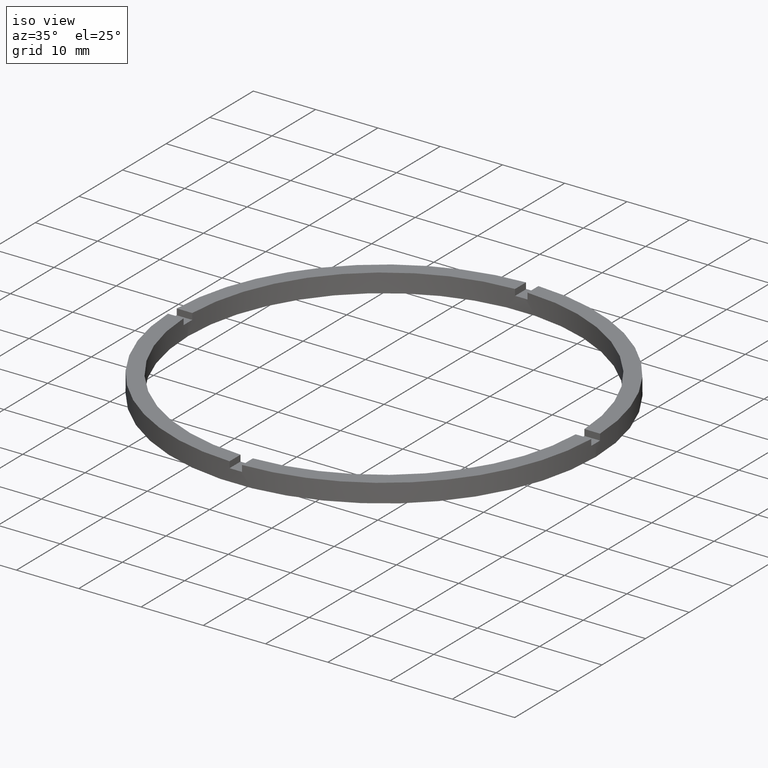
[diagram: clean part render]
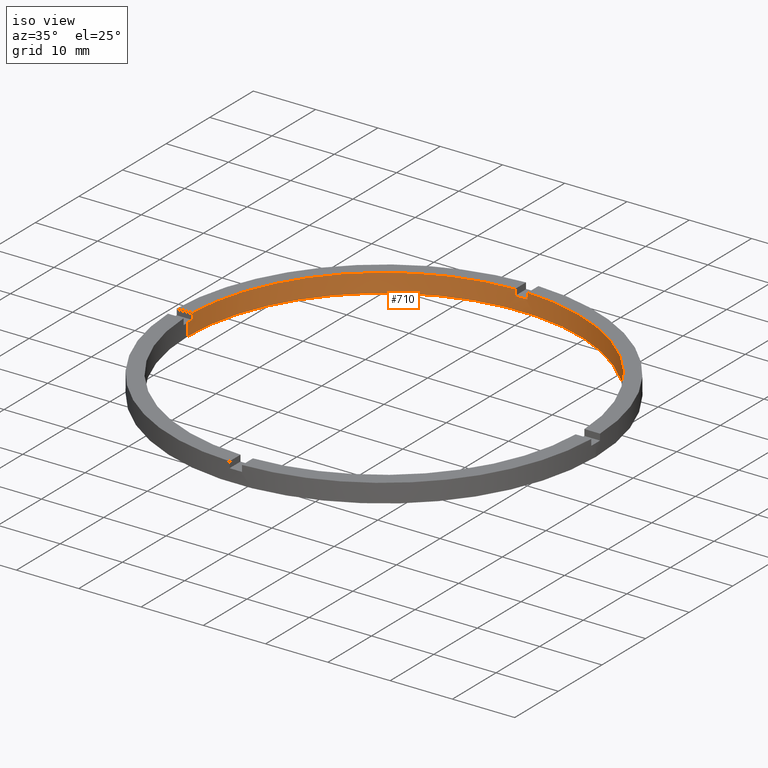
[diagram: same view with one face highlighted and labeled with its STEP entity id]
A machine part, iso view. The second image highlights one B-rep face of the part: STEP entity #710.
In plain terms, the highlighted cylindrical surface (partial cylindrical patch) has radius 31.5 mm, axis along (-0, -0, -1).
Its self-contained STEP definition (entity closure, byte-faithful):
#14 = ORIENTED_EDGE ( 'NONE', *, *, #447, .F. ) ;
#19 = CARTESIAN_POINT ( 'NONE',  ( -31.50000000000000000, 0.000000000000000000, 0.000000000000000000 ) ) ;
#20 = VERTEX_POINT ( 'NONE', #313 ) ;
#21 = DIRECTION ( 'NONE',  ( -0.000000000000000000, -0.000000000000000000, -1.000000000000000000 ) ) ;
#24 = AXIS2_PLACEMENT_3D ( 'NONE', #300, #392, #235 ) ;
#35 = ORIENTED_EDGE ( 'NONE', *, *, #758, .F. ) ;
#58 = VERTEX_POINT ( 'NONE', #655 ) ;
#61 = ORIENTED_EDGE ( 'NONE', *, *, #232, .F. ) ;
#73 = VERTEX_POINT ( 'NONE', #255 ) ;
#77 = ORIENTED_EDGE ( 'NONE', *, *, #582, .T. ) ;
#91 = LINE ( 'NONE', #525, #621 ) ;
#108 = CIRCLE ( 'NONE', #458, 31.50000000000000000 ) ;
#110 = VERTEX_POINT ( 'NONE', #19 ) ;
#115 = CIRCLE ( 'NONE', #722, 31.50000000000000000 ) ;
#131 = ORIENTED_EDGE ( 'NONE', *, *, #705, .T. ) ;
#136 = CARTESIAN_POINT ( 'NONE',  ( -1.000000000000024869, 31.48412298286233124, 3.000000000000000000 ) ) ;
#169 = CARTESIAN_POINT ( 'NONE',  ( 0.000000000000000000, 0.000000000000000000, 2.000000000000000000 ) ) ;
#174 = VERTEX_POINT ( 'NONE', #307 ) ;
#182 = CARTESIAN_POINT ( 'NONE',  ( 0.9999999999999751310, 31.48412298286233124, 3.000000000000000000 ) ) ;
#191 = DIRECTION ( 'NONE',  ( -0.000000000000000000, -0.000000000000000000, -1.000000000000000000 ) ) ;
#201 = EDGE_CURVE ( 'NONE', #598, #513, #772, .T. ) ;
#206 = AXIS2_PLACEMENT_3D ( 'NONE', #320, #414, #468 ) ;
#219 = DIRECTION ( 'NONE',  ( 0.000000000000000000, 0.000000000000000000, 1.000000000000000000 ) ) ;
#232 = EDGE_CURVE ( 'NONE', #598, #376, #769, .T. ) ;
#235 = DIRECTION ( 'NONE',  ( 1.000000000000000000, 0.000000000000000000, 0.000000000000000000 ) ) ;
#236 = DIRECTION ( 'NONE',  ( 0.000000000000000000, 0.000000000000000000, 1.000000000000000000 ) ) ;
#251 = VECTOR ( 'NONE', #191, 1000.000000000000000 ) ;
#255 = CARTESIAN_POINT ( 'NONE',  ( 31.50000000000000000, 3.857637417314162689E-15, 0.000000000000000000 ) ) ;
#262 = CARTESIAN_POINT ( 'NONE',  ( 0.000000000000000000, 0.000000000000000000, 3.000000000000000000 ) ) ;
#266 = CARTESIAN_POINT ( 'NONE',  ( 0.000000000000000000, 0.000000000000000000, 3.000000000000000000 ) ) ;
#274 = CARTESIAN_POINT ( 'NONE',  ( -31.48412298286233124, 0.9999999999999742428, 3.000000000000000000 ) ) ;
#300 = CARTESIAN_POINT ( 'NONE',  ( 0.000000000000000000, 0.000000000000000000, 2.000000000000000000 ) ) ;
#304 = DIRECTION ( 'NONE',  ( 0.000000000000000000, 0.000000000000000000, 1.000000000000000000 ) ) ;
#305 = CARTESIAN_POINT ( 'NONE',  ( -31.48412298286233124, 0.9999999999999742428, 2.000000000000000000 ) ) ;
#307 = CARTESIAN_POINT ( 'NONE',  ( 31.48412298286233479, 0.9999999999998416822, 2.000000000000000000 ) ) ;
#309 = EDGE_LOOP ( 'NONE', ( #603, #570, #35, #131, #14, #408, #61, #569, #659, #560, #77, #323 ) ) ;
#313 = CARTESIAN_POINT ( 'NONE',  ( 0.9999999999999751310, 31.48412298286233124, 2.000000000000000000 ) ) ;
#320 = CARTESIAN_POINT ( 'NONE',  ( 0.000000000000000000, 0.000000000000000000, 3.000000000000000000 ) ) ;
#323 = ORIENTED_EDGE ( 'NONE', *, *, #571, .F. ) ;
#326 = DIRECTION ( 'NONE',  ( 1.000000000000000000, 0.000000000000000000, 0.000000000000000000 ) ) ;
#330 = AXIS2_PLACEMENT_3D ( 'NONE', #466, #358, #326 ) ;
#331 = DIRECTION ( 'NONE',  ( 1.000000000000000000, 0.000000000000000000, 0.000000000000000000 ) ) ;
#352 = CARTESIAN_POINT ( 'NONE',  ( 0.000000000000000000, 0.000000000000000000, 0.000000000000000000 ) ) ;
#358 = DIRECTION ( 'NONE',  ( 0.000000000000000000, 0.000000000000000000, 1.000000000000000000 ) ) ;
#359 = EDGE_CURVE ( 'NONE', #479, #563, #648, .T. ) ;
#361 = LINE ( 'NONE', #182, #622 ) ;
#368 = CYLINDRICAL_SURFACE ( 'NONE', #418, 31.50000000000000000 ) ;
#376 = VERTEX_POINT ( 'NONE', #419 ) ;
#385 = CARTESIAN_POINT ( 'NONE',  ( 31.50000000000000000, 3.857637417314162689E-15, 3.000000000000000000 ) ) ;
#390 = LINE ( 'NONE', #558, #393 ) ;
#392 = DIRECTION ( 'NONE',  ( 0.000000000000000000, -0.000000000000000000, 1.000000000000000000 ) ) ;
#393 = VECTOR ( 'NONE', #506, 1000.000000000000000 ) ;
#408 = ORIENTED_EDGE ( 'NONE', *, *, #669, .T. ) ;
#414 = DIRECTION ( 'NONE',  ( 0.000000000000000000, 0.000000000000000000, 1.000000000000000000 ) ) ;
#418 = AXIS2_PLACEMENT_3D ( 'NONE', #266, #720, #462 ) ;
#419 = CARTESIAN_POINT ( 'NONE',  ( -1.000000000000024869, 31.48412298286233124, 2.000000000000000000 ) ) ;
#422 = VERTEX_POINT ( 'NONE', #767 ) ;
#447 = EDGE_CURVE ( 'NONE', #20, #58, #361, .T. ) ;
#456 = DIRECTION ( 'NONE',  ( 1.000000000000000000, 0.000000000000000000, 0.000000000000000000 ) ) ;
#457 = CARTESIAN_POINT ( 'NONE',  ( 31.50000000000000000, 3.857637417314162689E-15, 2.000000000000000000 ) ) ;
#458 = AXIS2_PLACEMENT_3D ( 'NONE', #169, #219, #331 ) ;
#462 = DIRECTION ( 'NONE',  ( -1.000000000000000000, 0.000000000000000000, 0.000000000000000000 ) ) ;
#466 = CARTESIAN_POINT ( 'NONE',  ( 0.000000000000000000, 0.000000000000000000, 2.000000000000000000 ) ) ;
#468 = DIRECTION ( 'NONE',  ( 1.000000000000000000, 0.000000000000000000, 0.000000000000000000 ) ) ;
#473 = EDGE_CURVE ( 'NONE', #548, #73, #629, .T. ) ;
#479 = VERTEX_POINT ( 'NONE', #305 ) ;
#500 = CARTESIAN_POINT ( 'NONE',  ( -1.000000000000024869, 31.48412298286233124, 3.000000000000000000 ) ) ;
#501 = DIRECTION ( 'NONE',  ( -0.000000000000000000, -0.000000000000000000, -1.000000000000000000 ) ) ;
#506 = DIRECTION ( 'NONE',  ( -0.000000000000000000, -0.000000000000000000, -1.000000000000000000 ) ) ;
#513 = VERTEX_POINT ( 'NONE', #274 ) ;
#520 = DIRECTION ( 'NONE',  ( 0.000000000000000000, 0.000000000000000000, 1.000000000000000000 ) ) ;
#525 = CARTESIAN_POINT ( 'NONE',  ( -31.48412298286233124, 0.9999999999999742428, 3.000000000000000000 ) ) ;
#531 = EDGE_CURVE ( 'NONE', #548, #174, #108, .T. ) ;
#548 = VERTEX_POINT ( 'NONE', #457 ) ;
#555 = DIRECTION ( 'NONE',  ( 1.000000000000000000, 0.000000000000000000, 0.000000000000000000 ) ) ;
#558 = CARTESIAN_POINT ( 'NONE',  ( -31.50000000000000000, 0.000000000000000000, 3.000000000000000000 ) ) ;
#560 = ORIENTED_EDGE ( 'NONE', *, *, #359, .T. ) ;
#563 = VERTEX_POINT ( 'NONE', #780 ) ;
#569 = ORIENTED_EDGE ( 'NONE', *, *, #201, .T. ) ;
#570 = ORIENTED_EDGE ( 'NONE', *, *, #531, .T. ) ;
#571 = EDGE_CURVE ( 'NONE', #73, #110, #115, .T. ) ;
#582 = EDGE_CURVE ( 'NONE', #563, #110, #390, .T. ) ;
#593 = LINE ( 'NONE', #754, #601 ) ;
#598 = VERTEX_POINT ( 'NONE', #500 ) ;
#601 = VECTOR ( 'NONE', #21, 1000.000000000000000 ) ;
#603 = ORIENTED_EDGE ( 'NONE', *, *, #473, .F. ) ;
#612 = VECTOR ( 'NONE', #501, 1000.000000000000000 ) ;
#621 = VECTOR ( 'NONE', #636, 1000.000000000000000 ) ;
#622 = VECTOR ( 'NONE', #236, 1000.000000000000000 ) ;
#624 = FACE_OUTER_BOUND ( 'NONE', #309, .T. ) ;
#628 = CIRCLE ( 'NONE', #654, 31.50000000000000000 ) ;
#629 = LINE ( 'NONE', #385, #612 ) ;
#636 = DIRECTION ( 'NONE',  ( 0.000000000000000000, 0.000000000000000000, 1.000000000000000000 ) ) ;
#648 = CIRCLE ( 'NONE', #330, 31.50000000000000000 ) ;
#654 = AXIS2_PLACEMENT_3D ( 'NONE', #262, #304, #555 ) ;
#655 = CARTESIAN_POINT ( 'NONE',  ( 0.9999999999999751310, 31.48412298286233124, 3.000000000000000000 ) ) ;
#659 = ORIENTED_EDGE ( 'NONE', *, *, #717, .F. ) ;
#669 = EDGE_CURVE ( 'NONE', #20, #376, #693, .T. ) ;
#693 = CIRCLE ( 'NONE', #24, 31.50000000000000000 ) ;
#705 = EDGE_CURVE ( 'NONE', #422, #58, #628, .T. ) ;
#710 = ADVANCED_FACE ( 'NONE', ( #624 ), #368, .F. ) ;
#717 = EDGE_CURVE ( 'NONE', #479, #513, #91, .T. ) ;
#720 = DIRECTION ( 'NONE',  ( -0.000000000000000000, -0.000000000000000000, -1.000000000000000000 ) ) ;
#722 = AXIS2_PLACEMENT_3D ( 'NONE', #352, #520, #456 ) ;
#754 = CARTESIAN_POINT ( 'NONE',  ( 31.48412298286233479, 0.9999999999998416822, 3.000000000000000000 ) ) ;
#758 = EDGE_CURVE ( 'NONE', #422, #174, #593, .T. ) ;
#767 = CARTESIAN_POINT ( 'NONE',  ( 31.48412298286233479, 0.9999999999998416822, 3.000000000000000000 ) ) ;
#769 = LINE ( 'NONE', #136, #251 ) ;
#772 = CIRCLE ( 'NONE', #206, 31.50000000000000000 ) ;
#780 = CARTESIAN_POINT ( 'NONE',  ( -31.50000000000000000, 0.000000000000000000, 2.000000000000000000 ) ) ;